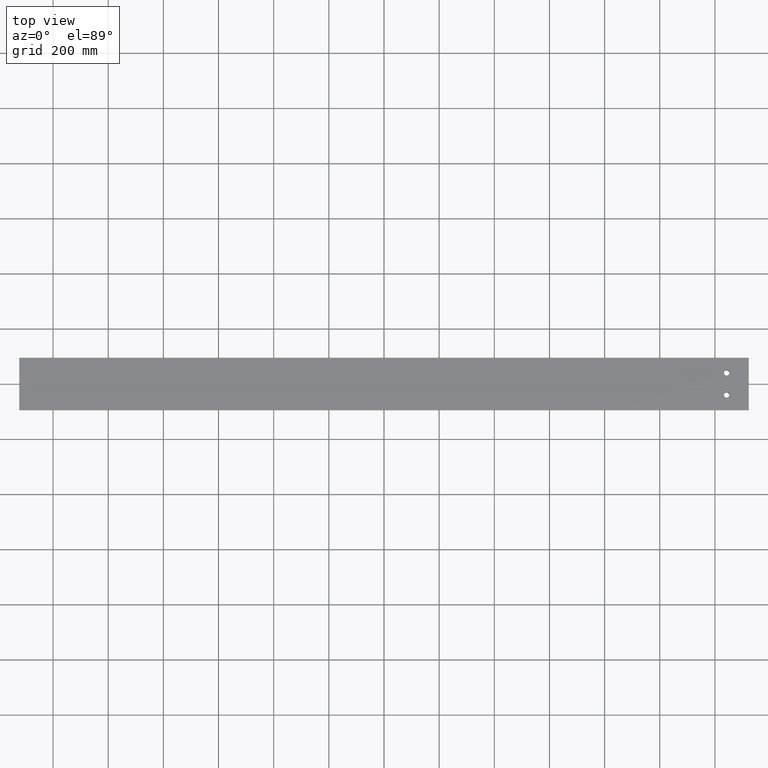
[diagram: clean part render]
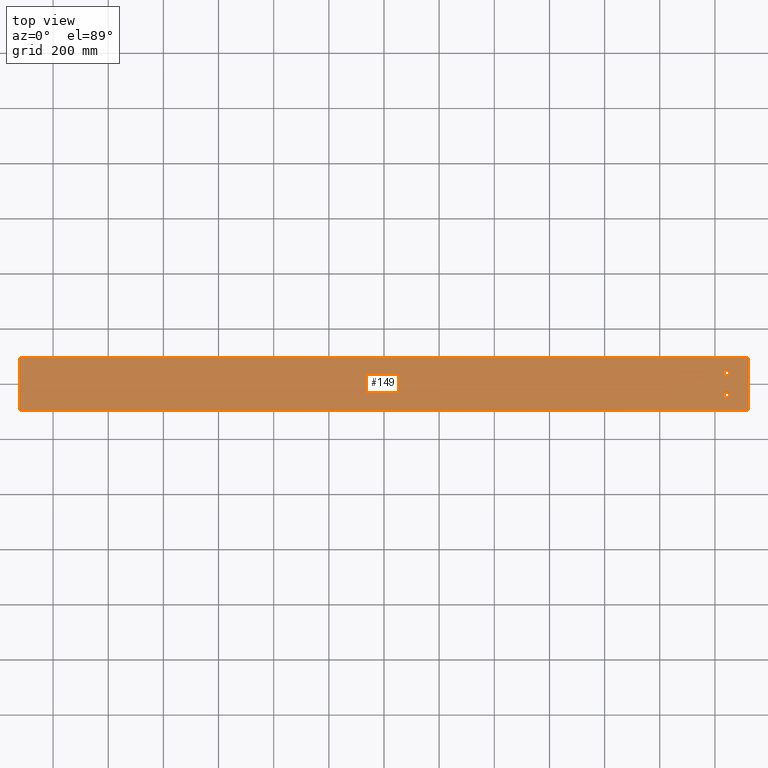
[diagram: same view with one face highlighted and labeled with its STEP entity id]
A machine part, top view. The second image highlights one B-rep face of the part: STEP entity #149.
In plain terms, the highlighted planar face has unit normal (0, -0, -1).
Its self-contained STEP definition (entity closure, byte-faithful):
#1 = VERTEX_POINT ( 'NONE', #198 ) ;
#3 = DIRECTION ( 'NONE',  ( 1.000000000000000000, 0.000000000000000000, 0.000000000000000000 ) ) ;
#5 = DIRECTION ( 'NONE',  ( -0.000000000000000000, -0.000000000000000000, 1.000000000000000000 ) ) ;
#8 = DIRECTION ( 'NONE',  ( 0.000000000000000000, 1.000000000000000000, -3.816391647148975608E-15 ) ) ;
#21 = CARTESIAN_POINT ( 'NONE',  ( 1242.500000000000000, 40.00000000000008527, 22.49999999999999645 ) ) ;
#27 = DIRECTION ( 'NONE',  ( 1.000000000000000000, 3.061616997868382648E-16, -0.000000000000000000 ) ) ;
#32 = EDGE_CURVE ( 'NONE', #130, #163, #75, .T. ) ;
#40 = CARTESIAN_POINT ( 'NONE',  ( -1322.500000000000000, -95.00000000000022737, 22.50000000000035527 ) ) ;
#42 = DIRECTION ( 'NONE',  ( -0.000000000000000000, -0.000000000000000000, 1.000000000000000000 ) ) ;
#45 = EDGE_LOOP ( 'NONE', ( #296, #55, #108, #216 ) ) ;
#48 = EDGE_CURVE ( 'NONE', #1, #77, #257, .T. ) ;
#55 = ORIENTED_EDGE ( 'NONE', *, *, #48, .F. ) ;
#59 = CARTESIAN_POINT ( 'NONE',  ( 1242.500000000000000, -39.99999999999991473, 22.49999999999999645 ) ) ;
#63 = CIRCLE ( 'NONE', #161, 9.500000000000063949 ) ;
#71 = FACE_BOUND ( 'NONE', #125, .T. ) ;
#75 = CIRCLE ( 'NONE', #336, 9.500000000000063949 ) ;
#77 = VERTEX_POINT ( 'NONE', #380 ) ;
#82 = VERTEX_POINT ( 'NONE', #116 ) ;
#91 = VERTEX_POINT ( 'NONE', #235 ) ;
#96 = FACE_BOUND ( 'NONE', #221, .T. ) ;
#98 = LINE ( 'NONE', #185, #242 ) ;
#99 = AXIS2_PLACEMENT_3D ( 'NONE', #239, #127, #8 ) ;
#101 = DIRECTION ( 'NONE',  ( 1.000000000000000000, 3.061616997868382648E-16, -0.000000000000000000 ) ) ;
#108 = ORIENTED_EDGE ( 'NONE', *, *, #156, .F. ) ;
#116 = CARTESIAN_POINT ( 'NONE',  ( 1232.999999999999773, 40.00000000000008527, 22.49999999999999645 ) ) ;
#125 = EDGE_LOOP ( 'NONE', ( #356, #276 ) ) ;
#126 = CARTESIAN_POINT ( 'NONE',  ( 1232.999999999999773, -39.99999999999991473, 22.49999999999999645 ) ) ;
#127 = DIRECTION ( 'NONE',  ( 1.168432953743421756E-30, -3.816391647148975608E-15, -1.000000000000000000 ) ) ;
#130 = VERTEX_POINT ( 'NONE', #359 ) ;
#132 = EDGE_CURVE ( 'NONE', #163, #130, #330, .T. ) ;
#138 = DIRECTION ( 'NONE',  ( -0.000000000000000000, -0.000000000000000000, 1.000000000000000000 ) ) ;
#149 = ADVANCED_FACE ( 'NONE', ( #71, #96, #241 ), #264, .F. ) ;
#156 = EDGE_CURVE ( 'NONE', #196, #1, #98, .T. ) ;
#161 = AXIS2_PLACEMENT_3D ( 'NONE', #211, #42, #302 ) ;
#163 = VERTEX_POINT ( 'NONE', #126 ) ;
#165 = DIRECTION ( 'NONE',  ( 0.000000000000000000, 1.000000000000000000, -3.816391647148975608E-15 ) ) ;
#173 = CARTESIAN_POINT ( 'NONE',  ( -1322.500000000000000, 94.99999999999977263, 22.49999999999963052 ) ) ;
#184 = EDGE_CURVE ( 'NONE', #82, #91, #63, .T. ) ;
#185 = CARTESIAN_POINT ( 'NONE',  ( -1322.500000000000000, -95.00000000000022737, 22.50000000000035527 ) ) ;
#187 = DIRECTION ( 'NONE',  ( 1.000000000000000000, 0.000000000000000000, 0.000000000000000000 ) ) ;
#196 = VERTEX_POINT ( 'NONE', #326 ) ;
#198 = CARTESIAN_POINT ( 'NONE',  ( -1322.500000000000000, 94.99999999999977263, 22.49999999999963052 ) ) ;
#200 = VECTOR ( 'NONE', #101, 1000.000000000000000 ) ;
#206 = EDGE_CURVE ( 'NONE', #196, #346, #266, .T. ) ;
#211 = CARTESIAN_POINT ( 'NONE',  ( 1242.500000000000000, 40.00000000000008527, 22.49999999999999645 ) ) ;
#216 = ORIENTED_EDGE ( 'NONE', *, *, #206, .T. ) ;
#219 = CARTESIAN_POINT ( 'NONE',  ( 1322.500000000000000, -94.99999999999941735, 22.50000000000035527 ) ) ;
#220 = ORIENTED_EDGE ( 'NONE', *, *, #132, .F. ) ;
#221 = EDGE_LOOP ( 'NONE', ( #280, #220 ) ) ;
#235 = CARTESIAN_POINT ( 'NONE',  ( 1252.000000000000000, 40.00000000000008527, 22.49999999999999645 ) ) ;
#239 = CARTESIAN_POINT ( 'NONE',  ( -1322.500000000000000, -95.00000000000022737, 22.50000000000035527 ) ) ;
#241 = FACE_OUTER_BOUND ( 'NONE', #45, .T. ) ;
#242 = VECTOR ( 'NONE', #306, 1000.000000000000000 ) ;
#257 = LINE ( 'NONE', #173, #325 ) ;
#264 = PLANE ( 'NONE',  #99 ) ;
#266 = LINE ( 'NONE', #40, #200 ) ;
#267 = VECTOR ( 'NONE', #165, 1000.000000000000000 ) ;
#270 = CARTESIAN_POINT ( 'NONE',  ( 1242.500000000000000, -39.99999999999991473, 22.49999999999999645 ) ) ;
#276 = ORIENTED_EDGE ( 'NONE', *, *, #184, .F. ) ;
#280 = ORIENTED_EDGE ( 'NONE', *, *, #32, .F. ) ;
#281 = AXIS2_PLACEMENT_3D ( 'NONE', #21, #138, #187 ) ;
#286 = EDGE_CURVE ( 'NONE', #346, #77, #385, .T. ) ;
#293 = DIRECTION ( 'NONE',  ( 1.000000000000000000, 0.000000000000000000, 0.000000000000000000 ) ) ;
#296 = ORIENTED_EDGE ( 'NONE', *, *, #286, .T. ) ;
#298 = EDGE_CURVE ( 'NONE', #91, #82, #343, .T. ) ;
#302 = DIRECTION ( 'NONE',  ( 1.000000000000000000, 0.000000000000000000, 0.000000000000000000 ) ) ;
#306 = DIRECTION ( 'NONE',  ( 0.000000000000000000, 1.000000000000000000, -3.816391647148975608E-15 ) ) ;
#307 = CARTESIAN_POINT ( 'NONE',  ( 1322.500000000000000, -94.99999999999941735, 22.50000000000035527 ) ) ;
#325 = VECTOR ( 'NONE', #27, 1000.000000000000000 ) ;
#326 = CARTESIAN_POINT ( 'NONE',  ( -1322.500000000000000, -95.00000000000022737, 22.50000000000035527 ) ) ;
#330 = CIRCLE ( 'NONE', #377, 9.500000000000063949 ) ;
#336 = AXIS2_PLACEMENT_3D ( 'NONE', #59, #348, #293 ) ;
#343 = CIRCLE ( 'NONE', #281, 9.500000000000063949 ) ;
#346 = VERTEX_POINT ( 'NONE', #219 ) ;
#348 = DIRECTION ( 'NONE',  ( -0.000000000000000000, -0.000000000000000000, 1.000000000000000000 ) ) ;
#356 = ORIENTED_EDGE ( 'NONE', *, *, #298, .F. ) ;
#359 = CARTESIAN_POINT ( 'NONE',  ( 1252.000000000000000, -39.99999999999991473, 22.49999999999999645 ) ) ;
#377 = AXIS2_PLACEMENT_3D ( 'NONE', #270, #5, #3 ) ;
#380 = CARTESIAN_POINT ( 'NONE',  ( 1322.500000000000000, 95.00000000000058265, 22.49999999999963052 ) ) ;
#385 = LINE ( 'NONE', #307, #267 ) ;